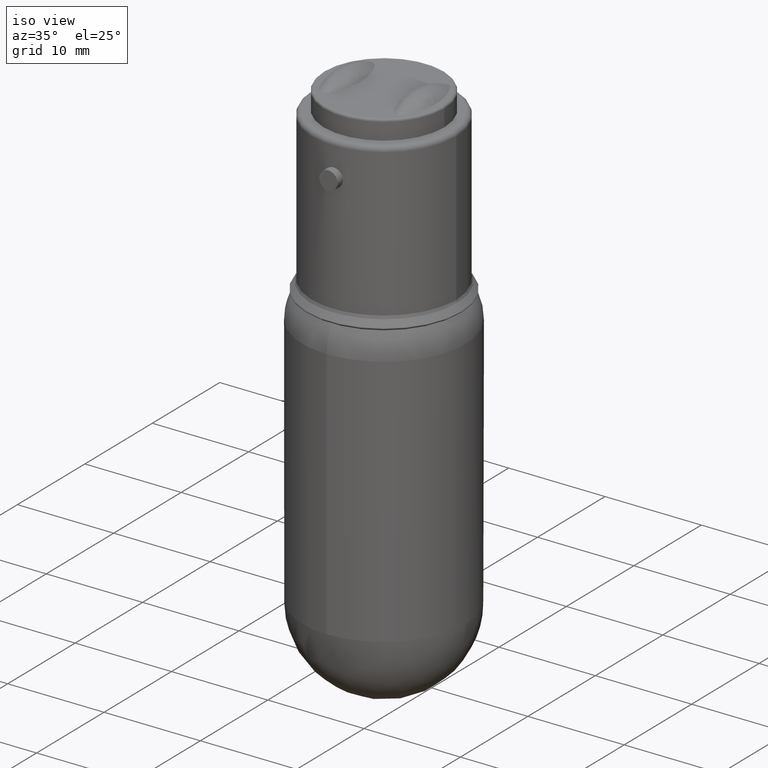
[diagram: clean part render]
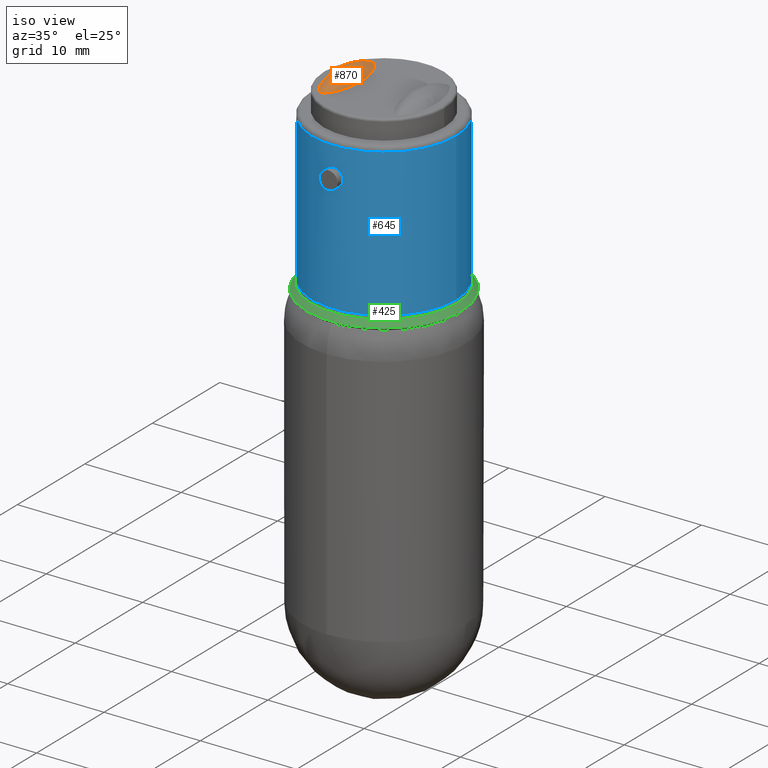
[diagram: same view with three faces highlighted in distinct colors, each labeled with its STEP entity id]
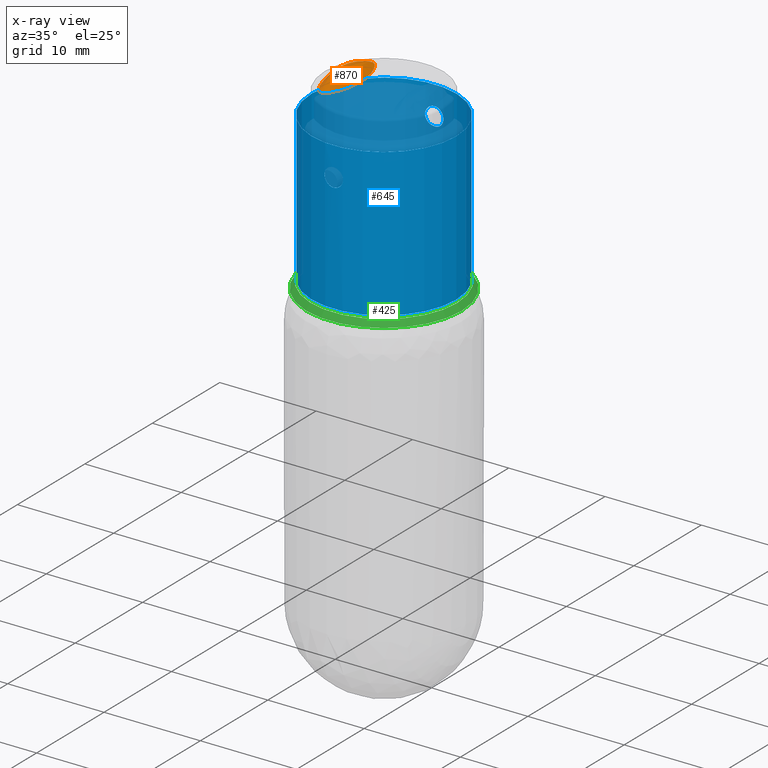
[diagram: x-ray of the same camera — body ghosted, the three highlighted faces saturated]
A machine part, iso view with three faces highlighted in distinct colors.
The next image is the same camera in x-ray (body ghosted, the three faces saturated) — at least one of them is partly hidden behind the body in this view.
Their STEP definitions:

[orange] entity #870 — the highlighted face is a freeform B-spline surface patch.
#716=CARTESIAN_POINT('',(-15.188640597727726,1.971098520778295,17.607050703237256));
#717=CARTESIAN_POINT('',(-13.374612361830350,5.726248867876719,18.440245951998982));
#718=CARTESIAN_POINT('',(-15.188640597727726,9.481399214975143,17.607050703237256));
#719=CARTESIAN_POINT('',(-15.368671053279323,1.971098520778295,17.999012047444893));
#720=CARTESIAN_POINT('',(-14.088829955877307,5.726248867876719,19.995236674883415));
#721=CARTESIAN_POINT('',(-15.368671053279323,9.481399214975143,17.999012047444893));
#722=CARTESIAN_POINT('',(-15.800000000000002,1.971098520778295,17.999012047444893));
#723=CARTESIAN_POINT('',(-15.800000000000002,5.726248867876719,19.995236674883412));
#724=CARTESIAN_POINT('',(-15.800000000000002,9.481399214975143,17.999012047444893));
#725=CARTESIAN_POINT('',(-16.231328946720684,1.971098520778295,17.999012047444889));
#726=CARTESIAN_POINT('',(-17.511170044122700,5.726248867876719,19.995236674883415));
#727=CARTESIAN_POINT('',(-16.231328946720684,9.481399214975143,17.999012047444889));
#728=CARTESIAN_POINT('',(-16.411359402272279,1.971098520778295,17.607050703237253));
#729=CARTESIAN_POINT('',(-18.225387638169657,5.726248867876719,18.440245951998982));
#730=CARTESIAN_POINT('',(-16.411359402272279,9.481399214975143,17.607050703237253));
#738=(BOUNDED_SURFACE()B_SPLINE_SURFACE(2,2,((#716,#719,#722,#725,#728),(#717,#720,#723,#726,#729),(#718,#721,#724,#727,#730)),.UNSPECIFIED.,.F.,.F.,.U.)B_SPLINE_SURFACE_WITH_KNOTS((3,3),(3,2,3),(-0.488604113328992,0.488604113328992),(0.0,1.140229988902174,2.280459977804349),.UNSPECIFIED.)GEOMETRIC_REPRESENTATION_ITEM()RATIONAL_B_SPLINE_SURFACE(((1.0,0.841838914904639,1.0,0.841838914904639,1.0),(0.882988939188638,0.743334450439362,0.882988939188638,0.743334450439362,0.882988939188638),(1.0,0.841838914904639,1.0,0.841838914904639,1.0)))REPRESENTATION_ITEM('')SURFACE());
#739=CARTESIAN_POINT('',(-15.800000000000002,1.972957574304435,18.0));
#740=VERTEX_POINT('',#739);
#741=CARTESIAN_POINT('',(-15.800000000000002,1.972957574304443,18.0));
#742=CARTESIAN_POINT('',(-15.850782629635848,1.972957574304443,18.0));
#743=CARTESIAN_POINT('',(-15.908686070109809,1.986213762744933,18.0));
#744=CARTESIAN_POINT('',(-15.957294096310468,2.007260780977127,18.0));
#745=CARTESIAN_POINT('',(-15.986168685855077,2.019763325517483,18.0));
#746=CARTESIAN_POINT('',(-16.014145178373358,2.035201279453822,18.0));
#747=CARTESIAN_POINT('',(-16.041449401634488,2.053023016907709,18.0));
#748=CARTESIAN_POINT('',(-16.072800448924937,2.073486156560914,18.0));
#749=CARTESIAN_POINT('',(-16.100115073459218,2.094640493962290,18.0));
#750=CARTESIAN_POINT('',(-16.128805695748067,2.119553785065623,18.0));
#751=CARTESIAN_POINT('',(-16.195207572751283,2.177213367173455,18.0));
#752=CARTESIAN_POINT('',(-16.248475657404736,2.236938288240417,18.0));
#753=CARTESIAN_POINT('',(-16.302832606254640,2.305674664322323,18.0));
#754=CARTESIAN_POINT('',(-16.352989318148218,2.369099685128193,18.0));
#755=CARTESIAN_POINT('',(-16.400110086239980,2.437237137307885,18.0));
#756=CARTESIAN_POINT('',(-16.439998217818175,2.499561912207898,18.0));
#757=CARTESIAN_POINT('',(-16.475804140763941,2.555508280197265,18.0));
#758=CARTESIAN_POINT('',(-16.511120884351453,2.614914989491996,18.0));
#759=CARTESIAN_POINT('',(-16.545471683894824,2.676722536256025,18.0));
#760=CARTESIAN_POINT('',(-16.642949910460459,2.852115543901247,18.0));
#761=CARTESIAN_POINT('',(-16.732000547066463,3.046825292684816,18.0));
#762=CARTESIAN_POINT('',(-16.805010279170453,3.231603410074826,18.0));
#763=CARTESIAN_POINT('',(-16.856035915392241,3.360742645735350,18.0));
#764=CARTESIAN_POINT('',(-16.898936197187773,3.482229897963683,18.0));
#765=CARTESIAN_POINT('',(-16.940283054448468,3.612145467040460,18.0));
#766=CARTESIAN_POINT('',(-17.090009121652340,4.082598326462732,18.0));
#767=CARTESIAN_POINT('',(-17.193237693381953,4.613227743067776,18.0));
#768=CARTESIAN_POINT('',(-17.235813672992780,5.122452310108884,18.0));
#769=CARTESIAN_POINT('',(-17.251282016098873,5.307459452470453,18.0));
#770=CARTESIAN_POINT('',(-17.259230557906406,5.489531226549478,18.0));
#771=CARTESIAN_POINT('',(-17.260717623596815,5.664514864392626,18.0));
#772=CARTESIAN_POINT('',(-17.261946024384049,5.809061295573078,18.0));
#773=CARTESIAN_POINT('',(-17.258975921320378,5.953829603335936,18.0));
#774=CARTESIAN_POINT('',(-17.251142781273074,6.104089528496590,18.0));
#775=CARTESIAN_POINT('',(-17.224749010769749,6.610390444424077,18.0));
#776=CARTESIAN_POINT('',(-17.138576875250347,7.151804483174278,18.0));
#777=CARTESIAN_POINT('',(-16.999678669452344,7.642643747701627,18.0));
#778=CARTESIAN_POINT('',(-16.958865100476221,7.786870968376525,18.0));
#779=CARTESIAN_POINT('',(-16.913859884173821,7.926776562132245,18.0));
#780=CARTESIAN_POINT('',(-16.865646664627768,8.060371488048602,18.0));
#781=CARTESIAN_POINT('',(-16.828001183559373,8.164684066668544,18.0));
#782=CARTESIAN_POINT('',(-16.785261107063548,8.273852512033763,18.0));
#783=CARTESIAN_POINT('',(-16.737338596461868,8.384315774564625,18.0));
#784=CARTESIAN_POINT('',(-16.652787217715293,8.579210011752222,18.0));
#785=CARTESIAN_POINT('',(-16.552601795840495,8.775186820796344,18.0));
#786=CARTESIAN_POINT('',(-16.447582861926975,8.941021942019637,18.0));
#787=CARTESIAN_POINT('',(-16.409894728322115,9.000535174273434,18.0));
#788=CARTESIAN_POINT('',(-16.367027250287556,9.063539814138398,18.0));
#789=CARTESIAN_POINT('',(-16.320225793993128,9.124498407951869,18.0));
#790=CARTESIAN_POINT('',(-16.282097412325797,9.174160378216255,18.0));
#791=CARTESIAN_POINT('',(-16.241814333149435,9.221665416861928,18.0));
#792=CARTESIAN_POINT('',(-16.202187481645076,9.262876780144946,18.0));
#793=CARTESIAN_POINT('',(-16.171400494290221,9.294894810144907,18.0));
#794=CARTESIAN_POINT('',(-16.134294335158856,9.329818199873820,18.0));
#795=CARTESIAN_POINT('',(-16.097128268062129,9.359240325814687,18.0));
#796=CARTESIAN_POINT('',(-16.070250166028753,9.380518092467241,18.0));
#797=CARTESIAN_POINT('',(-16.043655807515364,9.399210935982259,18.0));
#798=CARTESIAN_POINT('',(-16.013335931358284,9.416813645529725,18.0));
#799=CARTESIAN_POINT('',(-15.976149986007693,9.438402566007609,18.0));
#800=CARTESIAN_POINT('',(-15.940315069038009,9.454526618784875,18.0));
#801=CARTESIAN_POINT('',(-15.899046169569541,9.465877795964655,18.0));
#802=CARTESIAN_POINT('',(-15.829081425319860,9.485121880942566,18.0));
#803=CARTESIAN_POINT('',(-15.759044955727221,9.483800375323893,18.0));
#804=CARTESIAN_POINT('',(-15.689801560759943,9.462639897978361,18.0));
#805=CARTESIAN_POINT('',(-15.643217305255851,9.448403954120920,18.0));
#806=CARTESIAN_POINT('',(-15.602122022324936,9.427628215292364,18.0));
#807=CARTESIAN_POINT('',(-15.561211193697554,9.401202311267291,18.0));
#808=CARTESIAN_POINT('',(-15.527681726256160,9.379544317079780,18.0));
#809=CARTESIAN_POINT('',(-15.498708157899532,9.357032900605461,18.0));
#810=CARTESIAN_POINT('',(-15.468342432056195,9.330457813954840,18.0));
#811=CARTESIAN_POINT('',(-15.409815532267489,9.279236992120994,18.0));
#812=CARTESIAN_POINT('',(-15.362451537455403,9.227293117586228,18.0));
#813=CARTESIAN_POINT('',(-15.313862924338457,9.167629843560631,18.0));
#814=CARTESIAN_POINT('',(-15.258313006955413,9.099418595485968,18.0));
#815=CARTESIAN_POINT('',(-15.205739906101771,9.024222739064978,18.0));
#816=CARTESIAN_POINT('',(-15.161822075383309,8.955776389425926,18.0));
#817=CARTESIAN_POINT('',(-15.123354281719406,8.895823973473476,18.0));
#818=CARTESIAN_POINT('',(-15.085806845860912,8.832475970196489,18.0));
#819=CARTESIAN_POINT('',(-15.049208852629585,8.766170886141273,18.0));
#820=CARTESIAN_POINT('',(-14.954752376659531,8.595042798894324,18.0));
#821=CARTESIAN_POINT('',(-14.868415313961719,8.406157184619485,18.0));
#822=CARTESIAN_POINT('',(-14.797161003575599,8.226381030785674,18.0));
#823=CARTESIAN_POINT('',(-14.744824474629159,8.094334845396785,18.0));
#824=CARTESIAN_POINT('',(-14.701000910874056,7.970286092709636,18.0));
#825=CARTESIAN_POINT('',(-14.658816557514717,7.837520840888412,18.0));
#826=CARTESIAN_POINT('',(-14.502283695840221,7.344870767021387,18.0));
#827=CARTESIAN_POINT('',(-14.397223163789132,6.786383472995874,18.0));
#828=CARTESIAN_POINT('',(-14.358370216393805,6.255879231840493,18.0));
#829=CARTESIAN_POINT('',(-14.346268100857923,6.090635047058013,18.0));
#830=CARTESIAN_POINT('',(-14.340138957848328,5.928204913042993,18.0));
#831=CARTESIAN_POINT('',(-14.339161529349111,5.771584639057931,18.0));
#832=CARTESIAN_POINT('',(-14.338164326475287,5.611795777323311,18.0));
#833=CARTESIAN_POINT('',(-14.342336575727296,5.449834643270605,18.0));
#834=CARTESIAN_POINT('',(-14.352604522897773,5.282334238838266,18.0));
#835=CARTESIAN_POINT('',(-14.383769740022043,4.773937926910739,18.0));
#836=CARTESIAN_POINT('',(-14.475318606403421,4.234446087897810,18.0));
#837=CARTESIAN_POINT('',(-14.617944146243888,3.748725599249985,18.0));
#838=CARTESIAN_POINT('',(-14.651761417480511,3.633558697668668,18.0));
#839=CARTESIAN_POINT('',(-14.688214068146713,3.521382706719704,18.0));
#840=CARTESIAN_POINT('',(-14.726781039921621,3.413233878534108,18.0));
#841=CARTESIAN_POINT('',(-14.767067322638724,3.300263788654168,18.0));
#842=CARTESIAN_POINT('',(-14.812406547535391,3.183785864735896,18.0));
#843=CARTESIAN_POINT('',(-14.864160661252571,3.064729576642641,18.0));
#844=CARTESIAN_POINT('',(-14.930721253775003,2.911612142880504,18.0));
#845=CARTESIAN_POINT('',(-15.006756003078070,2.757838106219436,18.0));
#846=CARTESIAN_POINT('',(-15.087399736774927,2.618822819533618,18.0));
#847=CARTESIAN_POINT('',(-15.132831328904583,2.540506929197511,18.0));
#848=CARTESIAN_POINT('',(-15.177787808859751,2.468905351760862,18.0));
#849=CARTESIAN_POINT('',(-15.232238453097269,2.392368030519584,18.0));
#850=CARTESIAN_POINT('',(-15.283270231933342,2.320636360399157,18.0));
#851=CARTESIAN_POINT('',(-15.340596831525886,2.249251549949433,18.0));
#852=CARTESIAN_POINT('',(-15.396832412567685,2.190641349769020,18.0));
#853=CARTESIAN_POINT('',(-15.428441582498520,2.157697442319999,18.0));
#854=CARTESIAN_POINT('',(-15.466499282884801,2.121890758421082,18.0));
#855=CARTESIAN_POINT('',(-15.504630987297716,2.091868503449623,18.0));
#856=CARTESIAN_POINT('',(-15.531137748287696,2.070998921322077,18.0));
#857=CARTESIAN_POINT('',(-15.557512169215835,2.052550262754628,18.0));
#858=CARTESIAN_POINT('',(-15.587428163252097,2.035241238382706,18.0));
#859=CARTESIAN_POINT('',(-15.624335549411418,2.013887080945675,18.0));
#860=CARTESIAN_POINT('',(-15.659909150655569,1.997919805679659,18.0));
#861=CARTESIAN_POINT('',(-15.700861734934486,1.986645282663578,18.0));
#862=CARTESIAN_POINT('',(-15.734004528835836,1.977520847680109,18.0));
#863=CARTESIAN_POINT('',(-15.768413659030896,1.972957574304443,18.0));
#864=CARTESIAN_POINT('',(-15.800000000000002,1.972957574304443,18.0));
#865=B_SPLINE_CURVE_WITH_KNOTS('',3,(#741,#742,#743,#744,#745,#746,#747,#748,#749,#750,#751,#752,#753,#754,#755,#756,#757,#758,#759,#760,#761,#762,#763,#764,#765,#766,#767,#768,#769,#770,#771,#772,#773,#774,#775,#776,#777,#778,#779,#780,#781,#782,#783,#784,#785,#786,#787,#788,#789,#790,#791,#792,#793,#794,#795,#796,#797,#798,#799,#800,#801,#802,#803,#804,#805,#806,#807,#808,#809,#810,#811,#812,#813,#814,#815,#816,#817,#818,#819,#820,#821,#822,#823,#824,#825,#826,#827,#828,#829,#830,#831,#832,#833,#834,#835,#836,#837,#838,#839,#840,#841,#842,#843,#844,#845,#846,#847,#848,#849,#850,#851,#852,#853,#854,#855,#856,#857,#858,#859,#860,#861,#862,#863,#864),.UNSPECIFIED.,.T.,.U.,(4,3,3,3,3,3,3,3,3,3,3,3,3,3,3,3,3,3,3,3,3,3,3,3,3,3,3,3,3,3,3,3,3,3,3,3,3,3,3,3,3,4),(0.0,0.015234788890754,0.024284699171071,0.034675918231182,0.058725464560160,0.080916669032005,0.100836793789790,0.157364690088197,0.196871366661082,0.339933734721068,0.391909938555948,0.434845237325848,0.579515754561759,0.622025447902261,0.655217544819677,0.713779534219268,0.734795669104770,0.751917170774408,0.765219248415910,0.774839168628980,0.786637562048103,0.806639829827420,0.820096575461184,0.831125379563491,0.852382296517004,0.876684697940642,0.897971263060282,0.952910174983660,0.993262989270723,1.142999585756325,1.189640309616475,1.237224622850423,1.381652270268526,1.415896830760768,1.451668009622444,1.497673064858636,1.523590551680981,1.547880722605964,1.561533860462691,1.571024662604987,1.582733472922399,1.592209375213131),.UNSPECIFIED.);
#866=EDGE_CURVE('',#740,#740,#865,.T.);
#867=ORIENTED_EDGE('',*,*,#866,.F.);
#868=EDGE_LOOP('',(#867));
#869=FACE_OUTER_BOUND('',#868,.T.);
#870=ADVANCED_FACE('',(#869),#738,.T.);

[blue] entity #645 — the highlighted cylindrical surface (bore or boss wall) has radius 7.5 mm, axis along (0, 0, 1).
#499=CARTESIAN_POINT('',(-4.447431124239413,5.734766993235527,0.161402987543705));
#500=VERTEX_POINT('',#499);
#501=CARTESIAN_POINT('',(-11.947431124239413,5.734766993235528,0.161402987543705));
#502=DIRECTION('',(0.0,0.0,-1.0));
#503=DIRECTION('',(-1.0,0.0,0.0));
#504=AXIS2_PLACEMENT_3D('',#501,#502,#503);
#505=CIRCLE('',#504,7.500000000000000);
#506=EDGE_CURVE('',#500,#500,#505,.T.);
#514=CARTESIAN_POINT('',(-11.947431124239413,5.734766993235528,0.0));
#515=DIRECTION('',(0.0,0.0,1.0));
#516=DIRECTION('',(-1.0,0.0,0.0));
#517=AXIS2_PLACEMENT_3D('',#514,#515,#516);
#518=CYLINDRICAL_SURFACE('',#517,7.500000000000000);
#519=CARTESIAN_POINT('',(-4.447431124239413,5.734766993235530,15.500000000000000));
#520=VERTEX_POINT('',#519);
#521=CARTESIAN_POINT('',(-11.947431124239413,5.734766993235528,15.500000000000000));
#522=DIRECTION('',(0.0,0.0,1.0));
#523=DIRECTION('',(-1.0,0.0,0.0));
#524=AXIS2_PLACEMENT_3D('',#521,#522,#523);
#525=CIRCLE('',#524,7.500000000000000);
#526=EDGE_CURVE('',#520,#520,#525,.T.);
#527=ORIENTED_EDGE('',*,*,#526,.F.);
#528=EDGE_LOOP('',(#527));
#529=FACE_OUTER_BOUND('',#528,.T.);
#530=CARTESIAN_POINT('',(-10.997431124239414,13.174357035704265,12.500000000000000));
#531=VERTEX_POINT('',#530);
#532=CARTESIAN_POINT('',(-10.997431124239414,13.174357035704267,12.500000000000000));
#533=CARTESIAN_POINT('',(-10.997431124239414,13.174357035704267,12.661873535899586));
#534=CARTESIAN_POINT('',(-11.043128064032365,13.180563551604559,12.837400117205014));
#535=CARTESIAN_POINT('',(-11.130073739428761,13.190095752284018,12.984176523073447));
#536=CARTESIAN_POINT('',(-11.208077026753385,13.198647563343577,13.115856932791736));
#537=CARTESIAN_POINT('',(-11.310819673136145,13.208817699312780,13.221460042179016));
#538=CARTESIAN_POINT('',(-11.439783037604268,13.217566831540417,13.302990298905085));
#539=CARTESIAN_POINT('',(-11.571940078911132,13.226532629183614,13.386539588661474));
#540=CARTESIAN_POINT('',(-11.729759542368887,13.233142100418975,13.437144071882139));
#541=CARTESIAN_POINT('',(-11.881444691304749,13.234476706995691,13.447705540064295));
#542=CARTESIAN_POINT('',(-11.969199111422501,13.235248817034456,13.453815667010929));
#543=CARTESIAN_POINT('',(-12.056058770149392,13.234502000904355,13.448088269881668));
#544=CARTESIAN_POINT('',(-12.144488113232613,13.232177782507311,13.429337690556524));
#545=CARTESIAN_POINT('',(-12.299757053934469,13.228096796311029,13.396414426763631));
#546=CARTESIAN_POINT('',(-12.450351673328736,13.218807014948467,13.320617886369838));
#547=CARTESIAN_POINT('',(-12.567355735457671,13.209102647753987,13.219856566550513));
#548=CARTESIAN_POINT('',(-12.633551140357719,13.203612372424661,13.162850542636972));
#549=CARTESIAN_POINT('',(-12.690654491612028,13.198016102655950,13.098457169963851));
#550=CARTESIAN_POINT('',(-12.740057682194795,13.192765594711918,13.023682288820050));
#551=CARTESIAN_POINT('',(-12.827005882798071,13.183524851095937,12.892080639430930));
#552=CARTESIAN_POINT('',(-12.881220054433516,13.176420514331934,12.733164109510911));
#553=CARTESIAN_POINT('',(-12.894112039845540,13.174780114462340,12.579342573862615));
#554=CARTESIAN_POINT('',(-12.902313764899631,13.173736511923307,12.481483174983000));
#555=CARTESIAN_POINT('',(-12.895787197966301,13.174601723346079,12.384796433314071));
#556=CARTESIAN_POINT('',(-12.873156888262686,13.177416508685221,12.286618159574134));
#557=CARTESIAN_POINT('',(-12.843534278837753,13.181101004735362,12.158104820821737));
#558=CARTESIAN_POINT('',(-12.785118877375945,13.188252157800067,12.033429704376593));
#559=CARTESIAN_POINT('',(-12.707024927968565,13.196202327897101,11.929458806626304));
#560=CARTESIAN_POINT('',(-12.639872721414696,13.203038599702353,11.840055270829984));
#561=CARTESIAN_POINT('',(-12.561210393640652,13.210212157108918,11.766138678977178));
#562=CARTESIAN_POINT('',(-12.466541244737204,13.216780404263121,11.704371517103134));
#563=CARTESIAN_POINT('',(-12.334333719867727,13.225953104229758,11.618112332520115));
#564=CARTESIAN_POINT('',(-12.175103048041020,13.232885638934979,11.564893009009731));
#565=CARTESIAN_POINT('',(-12.021429918522612,13.234401929580406,11.552886396230827));
#566=CARTESIAN_POINT('',(-11.933456713750097,13.235269959976238,11.546012974651315));
#567=CARTESIAN_POINT('',(-11.846775367388931,13.234614799176077,11.551034168096308));
#568=CARTESIAN_POINT('',(-11.758210714213540,13.232379655705472,11.569035104620138));
#569=CARTESIAN_POINT('',(-11.603002767024499,13.228462607342411,11.600581419150506));
#570=CARTESIAN_POINT('',(-11.451832589045393,13.219311480749363,11.674903105906122));
#571=CARTESIAN_POINT('',(-11.333806249277226,13.209622477646423,11.774765891020259));
#572=CARTESIAN_POINT('',(-11.259367017775006,13.203511621828797,11.837749365676588));
#573=CARTESIAN_POINT('',(-11.196061798649843,13.197227034414556,11.910114650585468));
#574=CARTESIAN_POINT('',(-11.142838227412749,13.191484117438113,11.994895782658592));
#575=CARTESIAN_POINT('',(-11.052791021657002,13.181767865510706,12.138334185353996));
#576=CARTESIAN_POINT('',(-11.002156206382001,13.174960191624701,12.311867102325902));
#577=CARTESIAN_POINT('',(-10.997775903619965,13.174401054259645,12.474407775590484));
#578=CARTESIAN_POINT('',(-10.997545044794981,13.174371585567156,12.482974295048260));
#579=CARTESIAN_POINT('',(-10.997431124239414,13.174357035704265,12.491507066817922));
#580=CARTESIAN_POINT('',(-10.997431124239414,13.174357035704265,12.500000000000000));
#581=B_SPLINE_CURVE_WITH_KNOTS('',3,(#532,#533,#534,#535,#536,#537,#538,#539,#540,#541,#542,#543,#544,#545,#546,#547,#548,#549,#550,#551,#552,#553,#554,#555,#556,#557,#558,#559,#560,#561,#562,#563,#564,#565,#566,#567,#568,#569,#570,#571,#572,#573,#574,#575,#576,#577,#578,#579,#580),.UNSPECIFIED.,.T.,.U.,(4,3,3,3,3,3,3,3,3,3,3,3,3,3,3,3,4),(0.0,0.048562060769876,0.092129499426697,0.136775851620981,0.162605108965344,0.207957491863863,0.233615740770139,0.278773524037072,0.307502359090065,0.345107812623571,0.377444366254131,0.422603066504680,0.448455052449473,0.493760188588890,0.522334145249292,0.570677480633405,0.573225360588029),.UNSPECIFIED.);
#582=EDGE_CURVE('',#531,#531,#581,.T.);
#583=ORIENTED_EDGE('',*,*,#582,.T.);
#584=EDGE_LOOP('',(#583));
#585=FACE_BOUND('',#584,.T.);
#586=CARTESIAN_POINT('',(-10.997431124239414,-1.704823049233209,12.499999999999998));
#587=VERTEX_POINT('',#586);
#588=CARTESIAN_POINT('',(-10.997431124239414,-1.704823049233210,12.500000000000000));
#589=CARTESIAN_POINT('',(-10.997431124239414,-1.704823049233210,12.338126464099970));
#590=CARTESIAN_POINT('',(-11.043128064032636,-1.711029565133540,12.162599882794030));
#591=CARTESIAN_POINT('',(-11.130073739429475,-1.720561765813039,12.015823476925345));
#592=CARTESIAN_POINT('',(-11.208077026753989,-1.729113576872580,11.884143067207686));
#593=CARTESIAN_POINT('',(-11.310819673136388,-1.739283712841735,11.778539957820890));
#594=CARTESIAN_POINT('',(-11.439783037603997,-1.748032845069343,11.697009701095087));
#595=CARTESIAN_POINT('',(-11.571940078910787,-1.756998642712540,11.613460411338682));
#596=CARTESIAN_POINT('',(-11.729759542368466,-1.763608113947907,11.562855928117960));
#597=CARTESIAN_POINT('',(-11.881444691304296,-1.764942720524632,11.552294459935736));
#598=CARTESIAN_POINT('',(-11.969199111422151,-1.765714830563403,11.546184332989053));
#599=CARTESIAN_POINT('',(-12.056058770149127,-1.764968014433304,11.551911730118292));
#600=CARTESIAN_POINT('',(-12.144488113232448,-1.762643796036259,11.570662309443440));
#601=CARTESIAN_POINT('',(-12.299757053934044,-1.758562809839987,11.603585573236250));
#602=CARTESIAN_POINT('',(-12.450351673328079,-1.749273028477454,11.679382113629801));
#603=CARTESIAN_POINT('',(-12.567355735456946,-1.739568661282992,11.780143433448862));
#604=CARTESIAN_POINT('',(-12.633551140357008,-1.734078385953672,11.837149457362298));
#605=CARTESIAN_POINT('',(-12.690654491611301,-1.728482116184967,11.901542830035266));
#606=CARTESIAN_POINT('',(-12.740057682194111,-1.723231608240935,11.976317711178918));
#607=CARTESIAN_POINT('',(-12.827005882797360,-1.713990864624965,12.107919360567626));
#608=CARTESIAN_POINT('',(-12.881220054433001,-1.706886527860944,12.266835890487179));
#609=CARTESIAN_POINT('',(-12.894112039845359,-1.705246127991308,12.420657426135216));
#610=CARTESIAN_POINT('',(-12.902313764899690,-1.704202525452244,12.518516825014993));
#611=CARTESIAN_POINT('',(-12.895787197966547,-1.705067736874989,12.615203566683975));
#612=CARTESIAN_POINT('',(-12.873156888263100,-1.707882522214111,12.713381840424058));
#613=CARTESIAN_POINT('',(-12.843534278838673,-1.711567018264191,12.841895179175406));
#614=CARTESIAN_POINT('',(-12.785118877377874,-1.718718171328783,12.966570295619675));
#615=CARTESIAN_POINT('',(-12.707024927971625,-1.726668341425734,13.070541193369619));
#616=CARTESIAN_POINT('',(-12.639872721416921,-1.733504613231099,13.159944729168048));
#617=CARTESIAN_POINT('',(-12.561210393641550,-1.740678170637812,13.233861321022395));
#618=CARTESIAN_POINT('',(-12.466541244736259,-1.747246417792131,13.295628482897483));
#619=CARTESIAN_POINT('',(-12.334333719866272,-1.756419117758787,13.381887667480610));
#620=CARTESIAN_POINT('',(-12.175103048038958,-1.763351652463993,13.435106990990828));
#621=CARTESIAN_POINT('',(-12.021429918520175,-1.764867943109373,13.447113603769363));
#622=CARTESIAN_POINT('',(-11.933456713747759,-1.765735973505176,13.453987025348638));
#623=CARTESIAN_POINT('',(-11.846775367386581,-1.765080812704988,13.448965831903440));
#624=CARTESIAN_POINT('',(-11.758210714211264,-1.762845669234358,13.430964895379400));
#625=CARTESIAN_POINT('',(-11.603002767022129,-1.758928620871249,13.399418580848618));
#626=CARTESIAN_POINT('',(-11.451832589043121,-1.749777494278153,13.325096894092514));
#627=CARTESIAN_POINT('',(-11.333806249275222,-1.740088491175203,13.225234108978047));
#628=CARTESIAN_POINT('',(-11.259367017773290,-1.733977635357580,13.162250634321609));
#629=CARTESIAN_POINT('',(-11.196061798648294,-1.727693047943343,13.089885349412551));
#630=CARTESIAN_POINT('',(-11.142838227411445,-1.721950130966917,13.005104217339332));
#631=CARTESIAN_POINT('',(-11.052791021656049,-1.712233879039532,12.861665814643663));
#632=CARTESIAN_POINT('',(-11.002156206381539,-1.705426205153588,12.688132897671661));
#633=CARTESIAN_POINT('',(-10.997775903619903,-1.704867067788583,12.525592224407204));
#634=CARTESIAN_POINT('',(-10.997545044794961,-1.704837599096100,12.517025704950205));
#635=CARTESIAN_POINT('',(-10.997431124239414,-1.704823049233210,12.508492933181314));
#636=CARTESIAN_POINT('',(-10.997431124239414,-1.704823049233210,12.500000000000002));
#637=B_SPLINE_CURVE_WITH_KNOTS('',3,(#588,#589,#590,#591,#592,#593,#594,#595,#596,#597,#598,#599,#600,#601,#602,#603,#604,#605,#606,#607,#608,#609,#610,#611,#612,#613,#614,#615,#616,#617,#618,#619,#620,#621,#622,#623,#624,#625,#626,#627,#628,#629,#630,#631,#632,#633,#634,#635,#636),.UNSPECIFIED.,.T.,.U.,(4,3,3,3,3,3,3,3,3,3,3,3,3,3,3,3,4),(0.0,0.048562060770009,0.092129499426666,0.136775851620937,0.162605108965328,0.207957491863769,0.233615740770021,0.278773524036860,0.307502359089889,0.345107812623080,0.377444366254239,0.422603066504919,0.448455052449695,0.493760188589146,0.522334145249525,0.570677480633635,0.573225360588029),.UNSPECIFIED.);
#638=EDGE_CURVE('',#587,#587,#637,.T.);
#639=ORIENTED_EDGE('',*,*,#638,.T.);
#640=EDGE_LOOP('',(#639));
#641=FACE_BOUND('',#640,.T.);
#642=ORIENTED_EDGE('',*,*,#506,.F.);
#643=EDGE_LOOP('',(#642));
#644=FACE_BOUND('',#643,.T.);
#645=ADVANCED_FACE('',(#529,#585,#641,#644),#518,.T.);

[green] entity #425 — the highlighted conical surface has half-angle 35.781 deg.
#394=CARTESIAN_POINT('',(-19.993891699139660,5.734766993235531,-0.758222276239791));
#395=VERTEX_POINT('',#394);
#396=CARTESIAN_POINT('',(-11.947431124239413,5.734766993235530,-0.758222276239791));
#397=DIRECTION('',(0.0,0.0,-1.0));
#398=DIRECTION('',(1.0,0.0,0.0));
#399=AXIS2_PLACEMENT_3D('',#396,#397,#398);
#400=CIRCLE('',#399,8.046460574900245);
#401=EDGE_CURVE('',#395,#395,#400,.T.);
#406=CARTESIAN_POINT('',(-11.947431124239413,5.734766993235528,-0.419674138607654));
#407=DIRECTION('',(0.0,0.0,-1.0));
#408=DIRECTION('',(-1.0,0.0,0.0));
#409=AXIS2_PLACEMENT_3D('',#406,#407,#408);
#410=CONICAL_SURFACE('',#409,7.802464565129414,35.780778920472144);
#411=CARTESIAN_POINT('',(-4.353061129117006,5.734766993235532,-0.130939789249230));
#412=VERTEX_POINT('',#411);
#413=CARTESIAN_POINT('',(-11.947431124239413,5.734766993235530,-0.130939789249230));
#414=DIRECTION('',(0.0,0.0,1.0));
#415=DIRECTION('',(-1.0,0.0,0.0));
#416=AXIS2_PLACEMENT_3D('',#413,#414,#415);
#417=CIRCLE('',#416,7.594369995122408);
#418=EDGE_CURVE('',#412,#412,#417,.T.);
#419=ORIENTED_EDGE('',*,*,#418,.F.);
#420=EDGE_LOOP('',(#419));
#421=FACE_OUTER_BOUND('',#420,.T.);
#422=ORIENTED_EDGE('',*,*,#401,.F.);
#423=EDGE_LOOP('',(#422));
#424=FACE_BOUND('',#423,.T.);
#425=ADVANCED_FACE('',(#421,#424),#410,.T.);